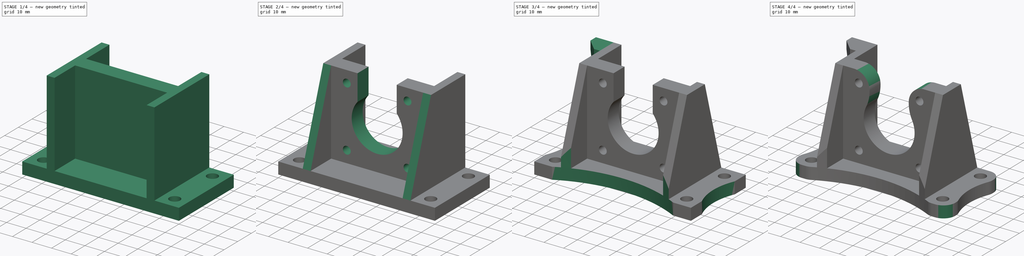
[diagram: build sequence overview — one tinted view per stage of 4, left to right]
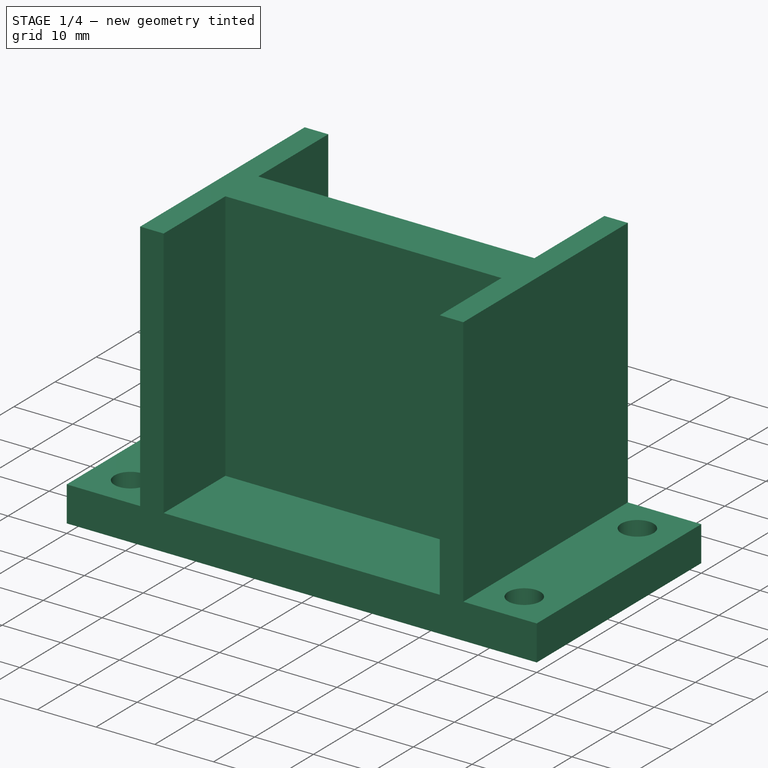
[diagram: stage 1 of 4 — iso view after this stage's code; geometry added in this stage tinted green]
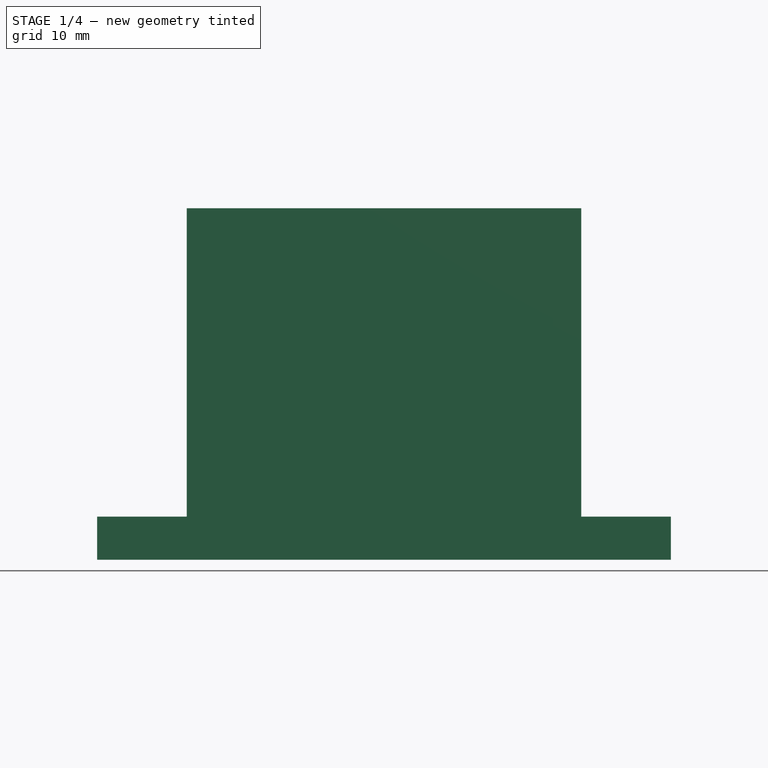
[diagram: stage 1 of 4 — front view after this stage's code; geometry added in this stage tinted green]
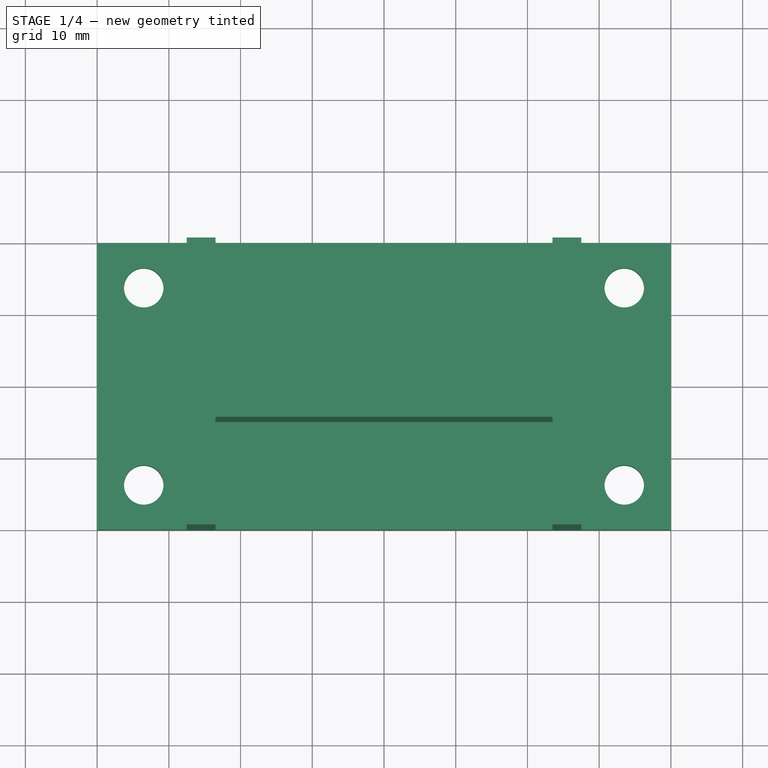
[diagram: stage 1 of 4 — top view after this stage's code; geometry added in this stage tinted green]
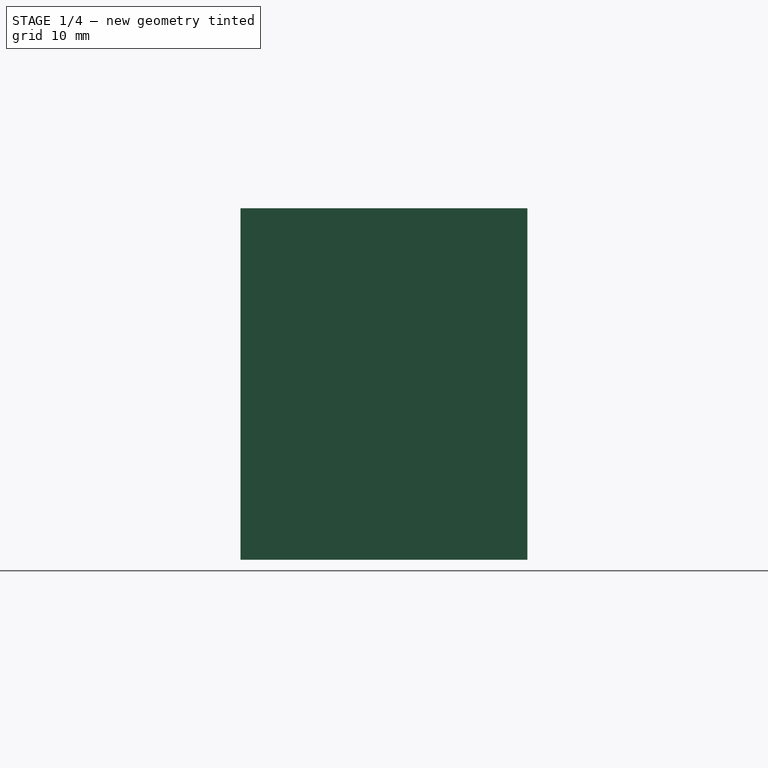
[diagram: stage 1 of 4 — right view after this stage's code; geometry added in this stage tinted green]
FCSTD DOCUMENT  (FreeCAD 0.16R5480 (Git))
Label: y_motor_mount_v3.0_TAZ
License: All rights reserved
LicenseURL: http://en.wikipedia.org/wiki/All_rights_reserved
objects: Sketcher::SketchObject×9, PartDesign::Pocket×6, PartDesign::Pad×3, PartDesign::Fillet×3, PartDesign::Chamfer×1
note: 31 computed .brp shape members not serialized (recipe doc carries the construction recipe); baked Part::Feature solids carry a one-line shape summary decoded from their .brp

FEATURE [Sketcher::SketchObject] Sketch
  sketch-geometry (20):
    g0: LineSegment StartX=0 StartY=0 StartZ=0 EndX=80 EndY=0 EndZ=0
    g1: LineSegment StartX=80 StartY=0 StartZ=0 EndX=80 EndY=40 EndZ=0
    g2: LineSegment StartX=80 StartY=40 StartZ=0 EndX=0 EndY=40 EndZ=0
    g3: LineSegment StartX=0 StartY=40 StartZ=0 EndX=0 EndY=0 EndZ=0
    g4: LineSegment [constr] StartX=6.5 StartY=33.75 StartZ=0 EndX=73.5 EndY=33.75 EndZ=0
    g5: LineSegment [constr] StartX=73.5 StartY=33.75 StartZ=0 EndX=73.5 EndY=6.25 EndZ=0
    g6: LineSegment [constr] StartX=73.5 StartY=6.25 StartZ=0 EndX=6.5 EndY=6.25 EndZ=0
    g7: LineSegment [constr] StartX=6.5 StartY=6.25 StartZ=0 EndX=6.5 EndY=33.75 EndZ=0
    g8: LineSegment [constr] StartX=0 StartY=40 StartZ=0 EndX=6.5 EndY=40 EndZ=0
    g9: LineSegment [constr] StartX=6.5 StartY=40 StartZ=0 EndX=6.5 EndY=33.75 EndZ=0
    g10: LineSegment [constr] StartX=6.5 StartY=33.75 StartZ=0 EndX=0 EndY=33.75 EndZ=0
    g11: LineSegment [constr] StartX=0 StartY=33.75 StartZ=0 EndX=0 EndY=40 EndZ=0
    g12: LineSegment [constr] StartX=80 StartY=0 StartZ=0 EndX=73.5 EndY=0 EndZ=0
    g13: LineSegment [constr] StartX=73.5 StartY=0 StartZ=0 EndX=73.5 EndY=6.25 EndZ=0
    g14: LineSegment [constr] StartX=73.5 StartY=6.25 StartZ=0 EndX=80 EndY=6.25 EndZ=0
    g15: LineSegment [constr] StartX=80 StartY=6.25 StartZ=0 EndX=80 EndY=0 EndZ=0
    g16: Circle CenterX=6.5 CenterY=33.75 CenterZ=0 NormalX=0 NormalY=0 NormalZ=1 Radius=2.75
    g17: Circle CenterX=73.5 CenterY=33.75 CenterZ=0 NormalX=0 NormalY=0 NormalZ=1 Radius=2.75
    g18: Circle CenterX=73.5 CenterY=6.25 CenterZ=0 NormalX=0 NormalY=0 NormalZ=1 Radius=2.75
    g19: Circle CenterX=6.5 CenterY=6.25 CenterZ=0 NormalX=0 NormalY=0 NormalZ=1 Radius=2.75
  constraints (51):
    c: Coincident(g0,g1)
    c: Coincident(g2,g3)
    c: Coincident(g3,g0)
    c: Horizontal(g0)
    c: Horizontal(g2)
    c: Vertical(g1)
    c: Vertical(g3)
    c: Coincident(g0,g-1)
    c: DistanceX(g2) = -80
    c: DistanceY(g3) = -40
    c: Coincident(g5,g6)
    c: Coincident(g6,g7)
    c: Coincident(g7,g4)
    c: Horizontal(g4)
    c: Horizontal(g6)
    c: Vertical(g5)
    c: Vertical(g7)
    c: Coincident(g8,g9)
    c: Coincident(g9,g10)
    c: Coincident(g10,g11)
    c: Coincident(g11,g8)
    c: Horizontal(g8)
    c: Horizontal(g10)
    c: Vertical(g9)
    c: Vertical(g11)
    c: Coincident(g8,g2)
    c: Coincident(g9,g4)
    c: Coincident(g12,g13)
    c: Coincident(g13,g14)
    c: Coincident(g14,g15)
    c: Coincident(g15,g12)
    c: Horizontal(g12)
    c: Horizontal(g14)
    c: Vertical(g13)
    c: Vertical(g15)
    c: Coincident(g12,g0)
    c: Coincident(g13,g5)
    c: Equal(g14,g10)
    c: Equal(g9,g13)
    c: Coincident(g16,g4)
    c: Coincident(g4,g5)
    c: Coincident(g17,g4)
    c: Coincident(g18,g5)
    c: Coincident(g19,g6)
    c: Radius(g16) = 2.75
    c: Equal(g16,g19)
    c: Equal(g16,g17)
    c: Equal(g16,g18)
    c: DistanceX(g6) = -67
    c: DistanceY(g5) = -27.5
    c: Coincident(g2,g1)
FEATURE [PartDesign::Pad] Pad
  Length = 6
  Length2 = 100
  Sketch = -> Sketch
  Type = 0
FEATURE [Sketcher::SketchObject] Sketch001
  ExternalGeometry = -> [Pad]
  Placement = pos=(0,0,6) rot=(0,0,1;0rad)
  Support = -> Pad [Face10]
  sketch-geometry (4):
    g0: LineSegment StartX=12.5 StartY=40 StartZ=0 EndX=67.5 EndY=40 EndZ=0
    g1: LineSegment StartX=67.5 StartY=40 StartZ=0 EndX=67.5 EndY=0 EndZ=0
    g2: LineSegment StartX=67.5 StartY=0 StartZ=0 EndX=12.5 EndY=0 EndZ=0
    g3: LineSegment StartX=12.5 StartY=0 StartZ=0 EndX=12.5 EndY=40 EndZ=0
  constraints (12):
    c: Coincident(g0,g1)
    c: Coincident(g1,g2)
    c: Coincident(g2,g3)
    c: Coincident(g3,g0)
    c: Horizontal(g0)
    c: Horizontal(g2)
    c: Vertical(g1)
    c: Vertical(g3)
    c: PointOnObject(g0,g-3)
    c: PointOnObject(g1,g-1)
    c: DistanceX(g0,g0) = 55
    c: DistanceX(g-3,g0) = 12.5
FEATURE [PartDesign::Pad] Pad001
  Length = 43
  Length2 = 100
  Sketch = -> Sketch001
  Type = 0
FEATURE [Sketcher::SketchObject] Sketch002
  ExternalGeometry = -> [Pad001]
  Placement = pos=(0,0,49) rot=(0,0,1;0rad)
  Support = -> Pad001 [Face16]
  sketch-geometry (8):
    g0: LineSegment StartX=16.5 StartY=40 StartZ=0 EndX=63.5 EndY=40 EndZ=0
    g1: LineSegment StartX=63.5 StartY=40 StartZ=0 EndX=63.5 EndY=23 EndZ=0
    g2: LineSegment StartX=63.5 StartY=23 StartZ=0 EndX=16.5 EndY=23 EndZ=0
    g3: LineSegment StartX=16.5 StartY=23 StartZ=0 EndX=16.5 EndY=40 EndZ=0
    g4: LineSegment StartX=16.5 StartY=0 StartZ=0 EndX=63.5 EndY=0 EndZ=0
    g5: LineSegment StartX=63.5 StartY=0 StartZ=0 EndX=63.5 EndY=15 EndZ=0
    g6: LineSegment StartX=63.5 StartY=15 StartZ=0 EndX=16.5 EndY=15 EndZ=0
    g7: LineSegment StartX=16.5 StartY=15 StartZ=0 EndX=16.5 EndY=0 EndZ=0
  constraints (24):
    c: Coincident(g0,g1)
    c: Coincident(g1,g2)
    c: Coincident(g2,g3)
    c: Coincident(g3,g0)
    c: Horizontal(g0)
    c: Horizontal(g2)
    c: Vertical(g1)
    c: Vertical(g3)
    c: PointOnObject(g0,g-5)
    c: DistanceY(g3) = 17
    c: DistanceX(g-5,g0) = 4
    c: DistanceX(g-5,g0) = -4
    c: Coincident(g4,g5)
    c: Coincident(g5,g6)
    c: Coincident(g6,g7)
    c: Coincident(g7,g4)
    c: Horizontal(g4)
    c: Horizontal(g6)
    c: Vertical(g5)
    c: Vertical(g7)
    c: PointOnObject(g4,g-1)
    c: DistanceY(g5,g1) = 8
    c: PointOnObject(g2,g7)
    c: PointOnObject(g1,g5)
FEATURE [PartDesign::Pocket] Pocket
  Length = 43
  Sketch = -> Sketch002
  Type = 0
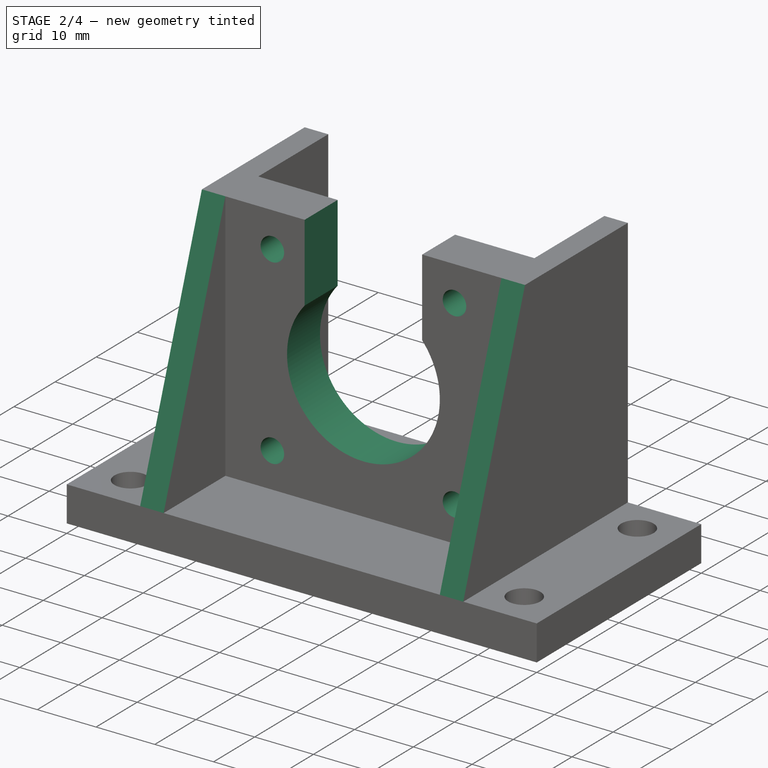
[diagram: stage 2 of 4 — iso view after this stage's code; geometry added in this stage tinted green]
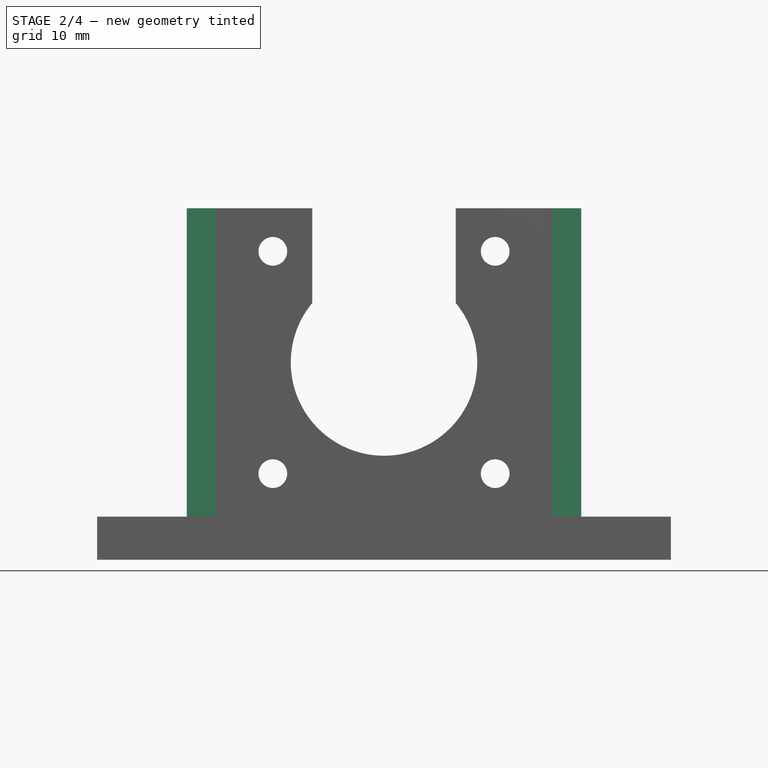
[diagram: stage 2 of 4 — front view after this stage's code; geometry added in this stage tinted green]
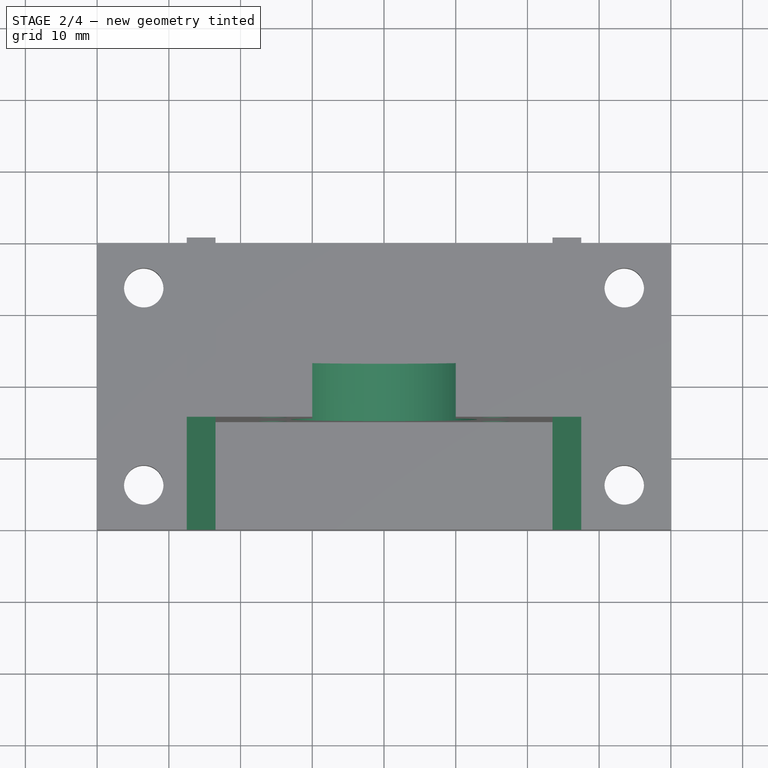
[diagram: stage 2 of 4 — top view after this stage's code; geometry added in this stage tinted green]
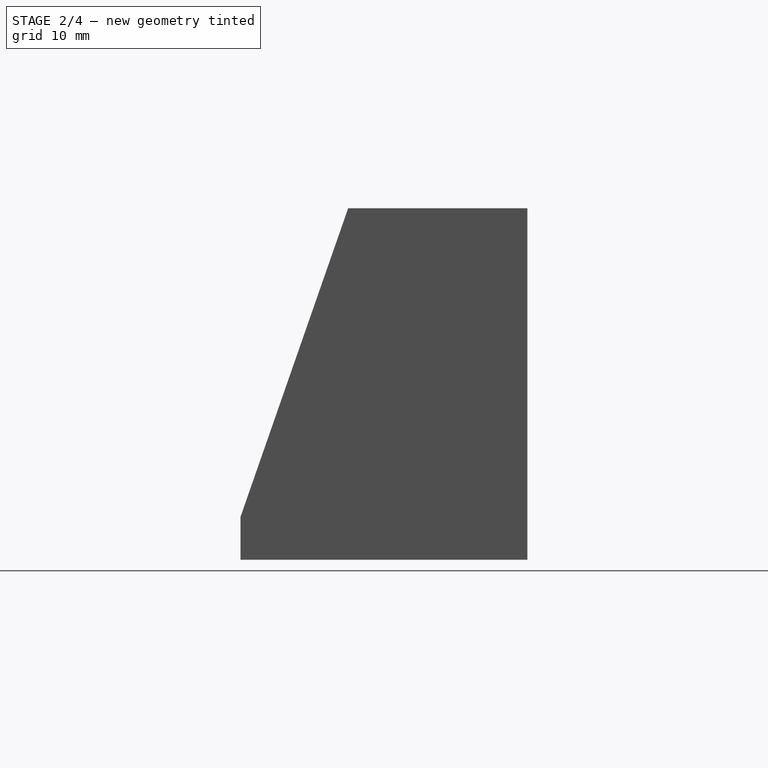
[diagram: stage 2 of 4 — right view after this stage's code; geometry added in this stage tinted green]
FEATURE [Sketcher::SketchObject] Sketch003
  ExternalGeometry = -> [Pocket]
  Placement = pos=(0,15,0) rot=(1,0,0;1.5708rad)
  Support = -> Pocket [Face26]
  sketch-geometry (19):
    g0: LineSegment [constr] StartX=24.5 StartY=43 StartZ=0 EndX=55.5 EndY=43 EndZ=0
    g1: LineSegment [constr] StartX=55.5 StartY=43 StartZ=0 EndX=55.5 EndY=12 EndZ=0
    g2: LineSegment [constr] StartX=55.5 StartY=12 StartZ=0 EndX=24.5 EndY=12 EndZ=0
    g3: LineSegment [constr] StartX=24.5 StartY=12 StartZ=0 EndX=24.5 EndY=43 EndZ=0
    g4: LineSegment [constr] StartX=24.5 StartY=43 StartZ=0 EndX=40 EndY=27.5 EndZ=0
    g5: LineSegment [constr] StartX=40 StartY=27.5 StartZ=0 EndX=55.5 EndY=12 EndZ=0
    g6: Circle CenterX=40 CenterY=27.5 CenterZ=0 NormalX=0 NormalY=0 NormalZ=1 Radius=13
    g7: Circle CenterX=55.5 CenterY=43 CenterZ=0 NormalX=0 NormalY=0 NormalZ=1 Radius=2
    g8: Circle CenterX=55.5 CenterY=12 CenterZ=0 NormalX=0 NormalY=0 NormalZ=1 Radius=2
    g9: Circle CenterX=24.5 CenterY=12 CenterZ=0 NormalX=0 NormalY=0 NormalZ=1 Radius=2
    g10: Circle CenterX=24.5 CenterY=43 CenterZ=0 NormalX=0 NormalY=0 NormalZ=1 Radius=2
    g11: LineSegment [constr] StartX=16.5 StartY=6 StartZ=0 EndX=24.5 EndY=6 EndZ=0
    g12: LineSegment [constr] StartX=24.5 StartY=6 StartZ=0 EndX=24.5 EndY=12 EndZ=0
    g13: LineSegment [constr] StartX=24.5 StartY=12 StartZ=0 EndX=16.5 EndY=12 EndZ=0
    g14: LineSegment [constr] StartX=16.5 StartY=12 StartZ=0 EndX=16.5 EndY=6 EndZ=0
    g15: LineSegment [constr] StartX=55.5 StartY=12 StartZ=0 EndX=63.5 EndY=12 EndZ=0
    g16: LineSegment [constr] StartX=63.5 StartY=12 StartZ=0 EndX=63.5 EndY=6 EndZ=0
    g17: LineSegment [constr] StartX=63.5 StartY=6 StartZ=0 EndX=55.5 EndY=6 EndZ=0
    g18: LineSegment [constr] StartX=55.5 StartY=6 StartZ=0 EndX=55.5 EndY=12 EndZ=0
  constraints (47):
    c: Coincident(g0,g1)
    c: Coincident(g1,g2)
    c: Coincident(g2,g3)
    c: Coincident(g3,g0)
    c: Horizontal(g0)
    c: Horizontal(g2)
    c: Vertical(g1)
    c: Vertical(g3)
    c: Equal(g0,g3)
    c: Coincident(g0,g4)
    c: Coincident(g4,g5)
    c: Coincident(g5,g1)
    c: Equal(g4,g5)
    c: PointOnObject(g1,g4)
    c: DistanceX(g0) = 31
    c: Coincident(g6,g4)
    c: Coincident(g7,g0)
    c: Coincident(g8,g1)
    c: Coincident(g9,g2)
    c: Coincident(g10,g0)
    c: Equal(g10,g9)
    c: Equal(g9,g8)
    c: Equal(g8,g7)
    c: Radius(g7) = 2
    c: Radius(g6) = 13
    c: Coincident(g11,g12)
    c: Coincident(g12,g13)
    c: Coincident(g13,g14)
    c: Coincident(g14,g11)
    c: Horizontal(g11)
    c: Horizontal(g13)
    c: Vertical(g12)
    c: Vertical(g14)
    c: Coincident(g11,g-3)
    c: Coincident(g12,g2)
    c: Coincident(g15,g16)
    c: Coincident(g16,g17)
    c: Coincident(g17,g18)
    c: Coincident(g18,g15)
    c: Horizontal(g15)
    c: Horizontal(g17)
    c: Vertical(g16)
    c: Vertical(g18)
    c: Coincident(g15,g1)
    c: Coincident(g16,g-3)
    c: Equal(g13,g15)
    c: DistanceY(g12) = 6
FEATURE [PartDesign::Pocket] Pocket001
  Length = 5
  Sketch = -> Sketch003
  Type = 1
FEATURE [Sketcher::SketchObject] Sketch004
  ExternalGeometry = -> [Pocket001]
  Placement = pos=(0,15,0) rot=(1,0,0;1.5708rad)
  Support = -> Pocket001 [Face26]
  sketch-geometry (4):
    g0: LineSegment StartX=30 StartY=35.8066 StartZ=0 EndX=50 EndY=35.8066 EndZ=0
    g1: LineSegment StartX=50 StartY=35.8066 StartZ=0 EndX=50 EndY=49 EndZ=0
    g2: LineSegment StartX=50 StartY=49 StartZ=0 EndX=30 EndY=49 EndZ=0
    g3: LineSegment StartX=30 StartY=49 StartZ=0 EndX=30 EndY=35.8066 EndZ=0
  constraints (12):
    c: Coincident(g0,g1)
    c: Coincident(g1,g2)
    c: Coincident(g2,g3)
    c: Coincident(g3,g0)
    c: Horizontal(g0)
    c: Horizontal(g2)
    c: Vertical(g1)
    c: Vertical(g3)
    c: PointOnObject(g0,g-4)
    c: PointOnObject(g1,g-3)
    c: PointOnObject(g0,g-4)
    c: DistanceX(g0) = 20
FEATURE [PartDesign::Pocket] Pocket002
  Length = 5
  Sketch = -> Sketch004
  Type = 1
FEATURE [Sketcher::SketchObject] Sketch005
  ExternalGeometry = -> [Pocket002]
  Placement = pos=(12.5,0,0) rot=(0.57735,-0.57735,-0.57735;2.0944rad)
  Support = -> Pocket002 [Face18]
  sketch-geometry (3):
    g0: LineSegment StartX=0 StartY=6 StartZ=0 EndX=-15 EndY=49 EndZ=0
    g1: LineSegment StartX=-15 StartY=49 StartZ=0 EndX=0 EndY=49 EndZ=0
    g2: LineSegment StartX=0 StartY=49 StartZ=0 EndX=0 EndY=6 EndZ=0
  constraints (7):
    c: Coincident(g-4,g0)
    c: PointOnObject(g0,g-3)
    c: Coincident(g0,g1)
    c: Coincident(g1,g-3)
    c: Coincident(g1,g2)
    c: Coincident(g2,g0)
    c: DistanceX(g0,g1) = 15
FEATURE [PartDesign::Pocket] Pocket003
  Length = 5
  Sketch = -> Sketch005
  Type = 1
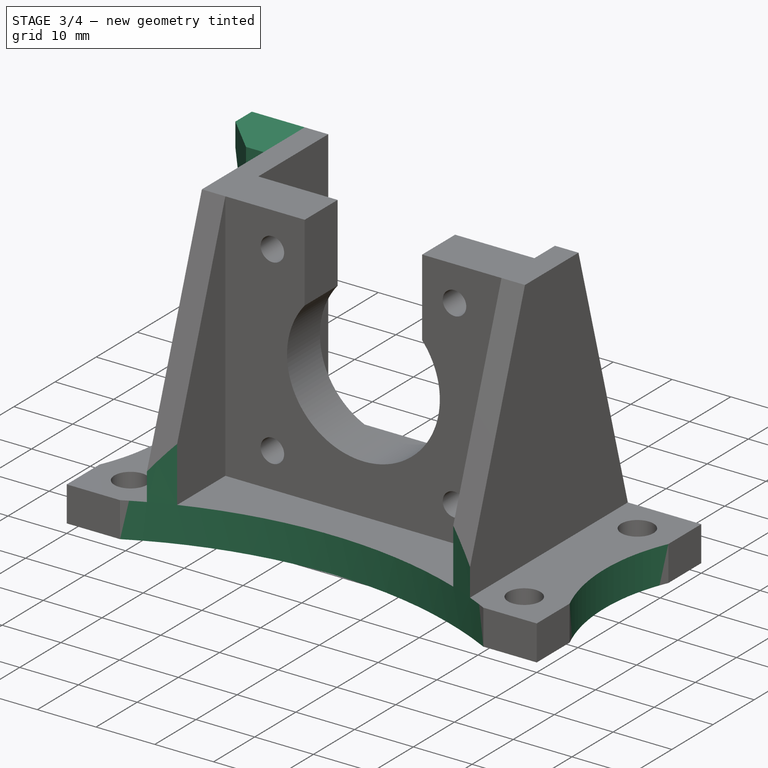
[diagram: stage 3 of 4 — iso view after this stage's code; geometry added in this stage tinted green]
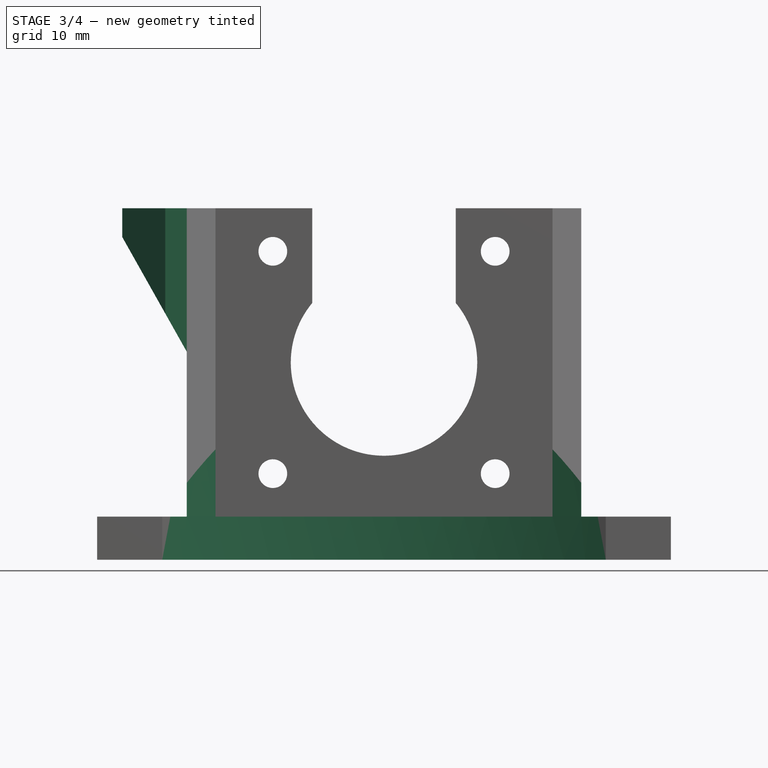
[diagram: stage 3 of 4 — front view after this stage's code; geometry added in this stage tinted green]
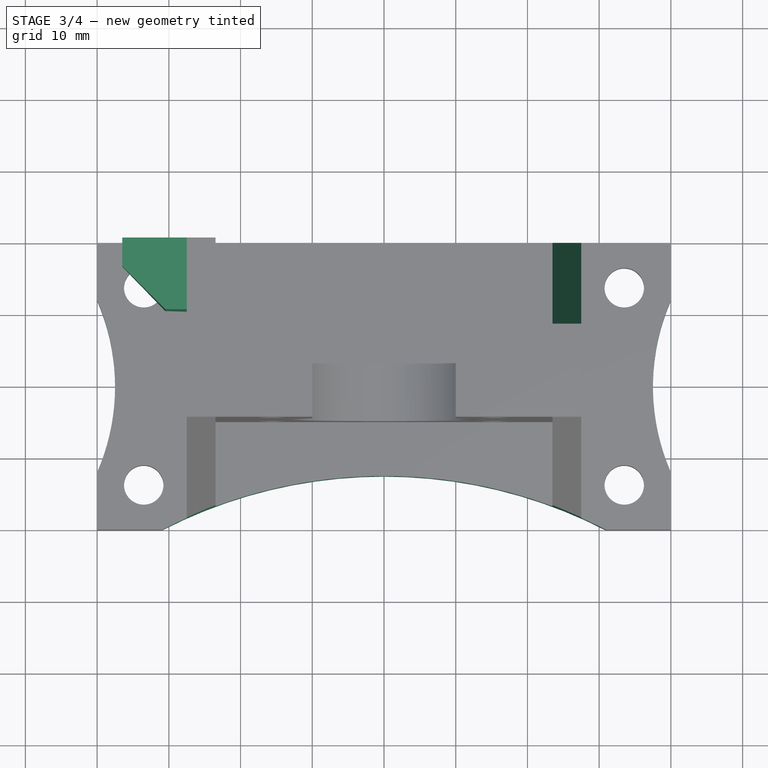
[diagram: stage 3 of 4 — top view after this stage's code; geometry added in this stage tinted green]
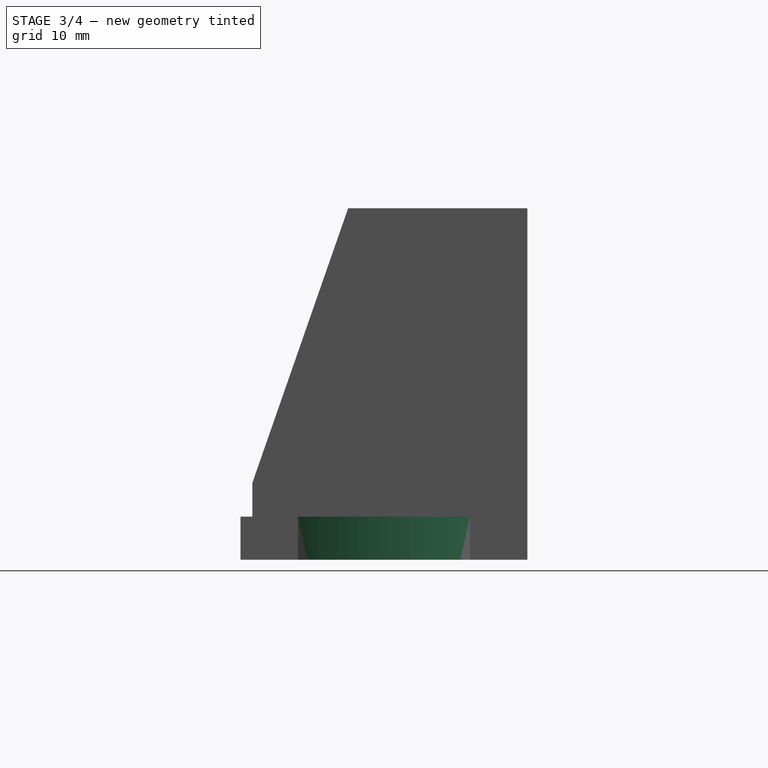
[diagram: stage 3 of 4 — right view after this stage's code; geometry added in this stage tinted green]
FEATURE [Sketcher::SketchObject] Sketch006
  ExternalGeometry = -> [Pocket003]
  Placement = pos=(67.5,0,0) rot=(0.57735,0.57735,0.57735;2.0944rad)
  Support = -> Pocket003 [Face19]
  sketch-geometry (3):
    g0: LineSegment StartX=40 StartY=6 StartZ=0 EndX=28 EndY=49 EndZ=0
    g1: LineSegment StartX=28 StartY=49 StartZ=0 EndX=40 EndY=49 EndZ=0
    g2: LineSegment StartX=40 StartY=49 StartZ=0 EndX=40 EndY=6 EndZ=0
  constraints (4):
    c: Coincident(g0,g1)
    c: Coincident(g1,g2)
    c: Coincident(g2,g0)
    c: DistanceX(g0,g1) = 12
FEATURE [PartDesign::Pocket] Pocket004
  Length = 10
  Sketch = -> Sketch006
  Type = 0
FEATURE [Sketcher::SketchObject] Sketch007
  ExternalGeometry = -> [Pocket004]
  Placement = pos=(0,40,0) rot=(0,0.707107,0.707107;3.14159rad)
  Support = -> Pocket004 [Face10]
  sketch-geometry (4):
    g0: LineSegment StartX=-12.5 StartY=49 StartZ=0 EndX=-3.5 EndY=49 EndZ=0
    g1: LineSegment StartX=-3.5 StartY=49 StartZ=0 EndX=-3.5 EndY=45 EndZ=0
    g2: LineSegment StartX=-3.5 StartY=45 StartZ=0 EndX=-12.5 EndY=29 EndZ=0
    g3: LineSegment StartX=-12.5 StartY=29 StartZ=0 EndX=-12.5 EndY=49 EndZ=0
  constraints (11):
    c: Coincident(g-4,g0)
    c: Horizontal(g0)
    c: Coincident(g0,g1)
    c: Vertical(g1)
    c: Coincident(g1,g2)
    c: PointOnObject(g2,g-4)
    c: Coincident(g2,g3)
    c: Coincident(g3,g0)
    c: DistanceX(g0) = 9
    c: DistanceY(g1) = -4
    c: DistanceY(g2,g0) = 20
FEATURE [PartDesign::Pad] Pad002
  Length = 10
  Length2 = 100
  Reversed = true
  Sketch = -> Sketch007
  Type = 0
FEATURE [Sketcher::SketchObject] Sketch008
  Placement = pos=(0,0,0) rot=(1,0,0;3.14159rad)
  Support = -> Pad002 [Face4]
  sketch-geometry (3):
    g0: Circle CenterX=40 CenterY=60 CenterZ=0 NormalX=0 NormalY=0 NormalZ=1 Radius=67.5
    g1: Circle CenterX=-27.5 CenterY=-20 CenterZ=0 NormalX=0 NormalY=0 NormalZ=1 Radius=30
    g2: Circle CenterX=107.5 CenterY=-20 CenterZ=0 NormalX=0 NormalY=0 NormalZ=1 Radius=30
  constraints (9):
    c: DistanceX(g0) = 40
    c: DistanceY(g0) = 60
    c: Radius(g0) = 67.5
    c: Radius(g1) = 30
    c: DistanceX(g1) = -27.5
    c: DistanceY(g1) = -20
    c: Equal(g1,g2)
    c: DistanceX(g2) = 107.5
    c: DistanceY(g2) = -20
FEATURE [PartDesign::Pocket] Pocket005
  Length = 5
  Sketch = -> Sketch008
  Type = 1
FEATURE [PartDesign::Chamfer] Chamfer
  Base = -> Pocket005 [Edge90]
  Size = 6
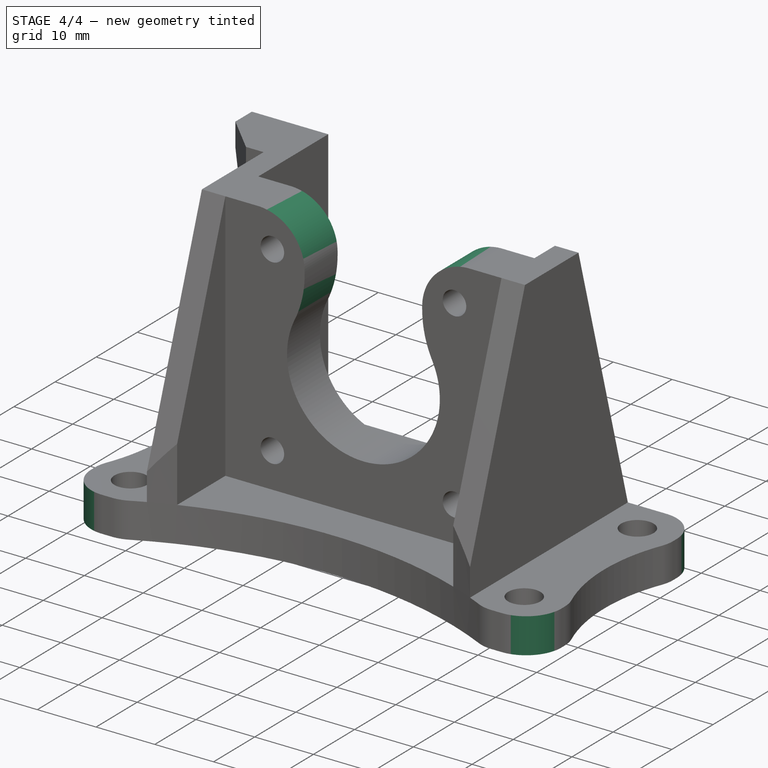
[diagram: stage 4 of 4 — iso view after this stage's code; geometry added in this stage tinted green]
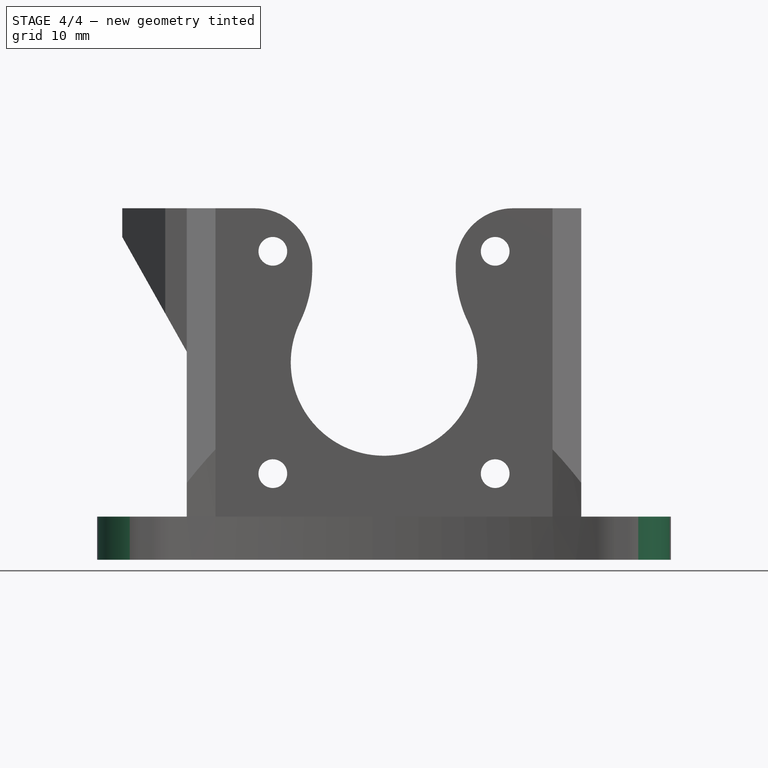
[diagram: stage 4 of 4 — front view after this stage's code; geometry added in this stage tinted green]
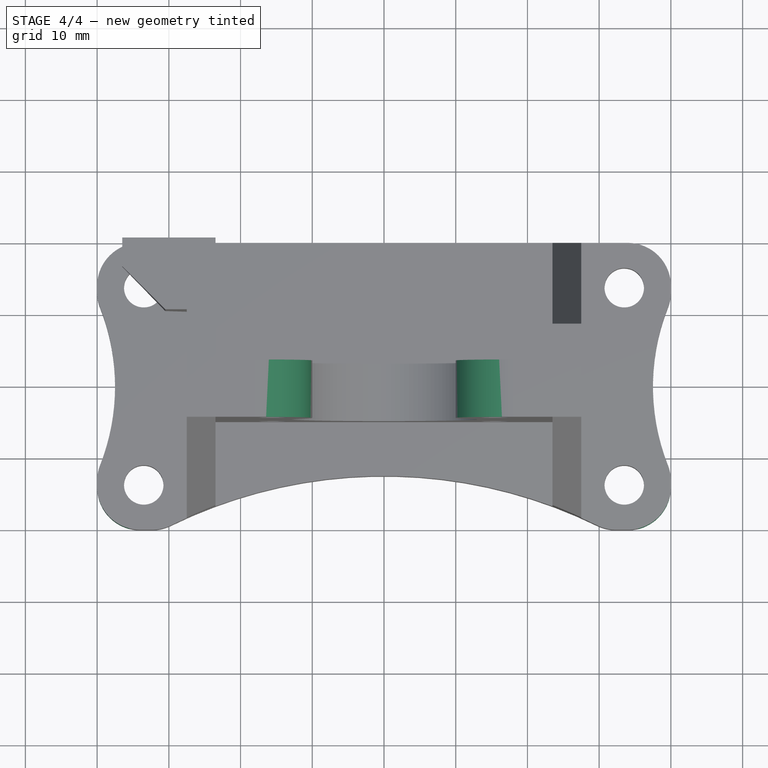
[diagram: stage 4 of 4 — top view after this stage's code; geometry added in this stage tinted green]
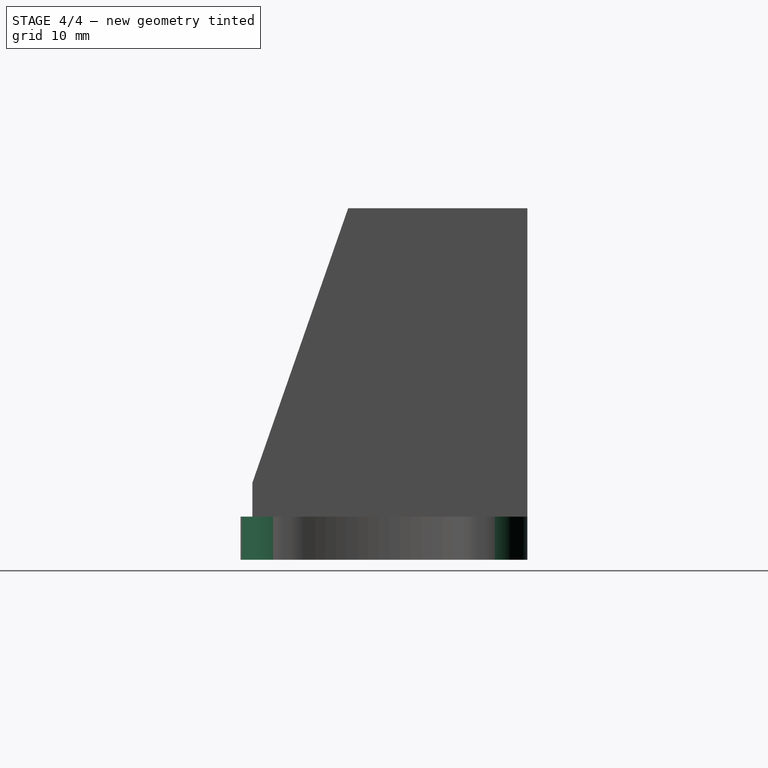
[diagram: stage 4 of 4 — right view after this stage's code; geometry added in this stage tinted green]
FEATURE [PartDesign::Fillet] Fillet
  Base = -> Chamfer [Edge59,Edge65,Edge61,Edge52,Edge48,Edge41,Edge102,Edge128,Edge116,Edge49]
  Radius = 6
FEATURE [PartDesign::Fillet] Fillet001
  Base = -> Fillet [Edge111,Edge128]
  Radius = 8
FEATURE [PartDesign::Fillet] Fillet002
  Base = -> Fillet001 [Edge66,Edge62]
  Radius = 17
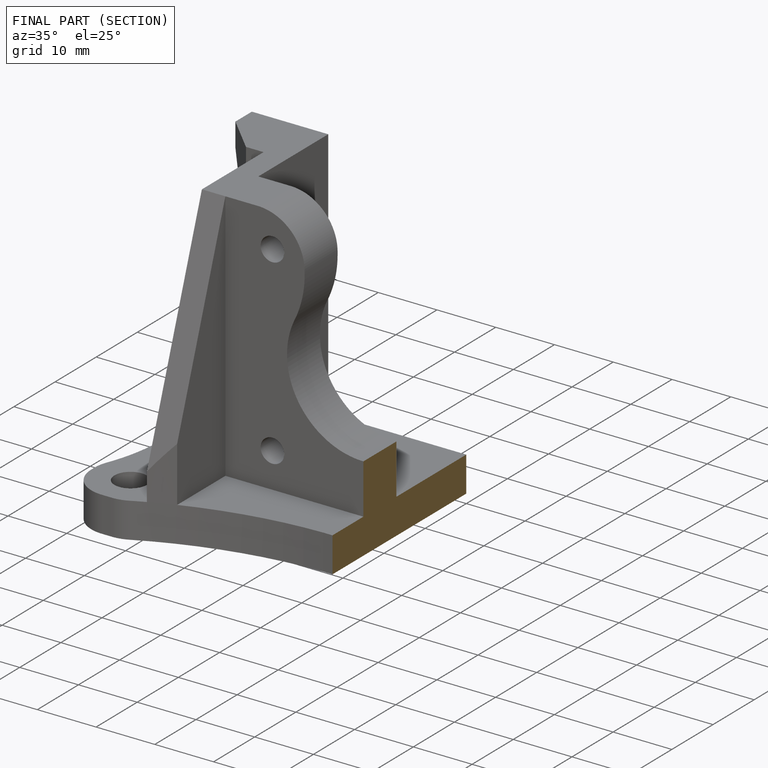
[diagram: finished part — half-section view (interior)]
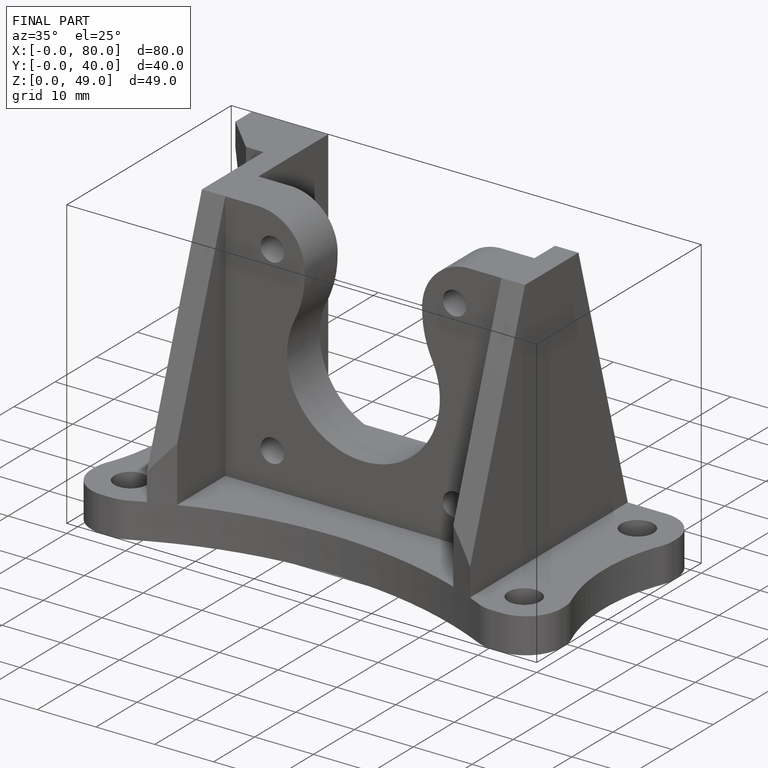
[diagram: finished part — iso view with bounding-box wireframe]
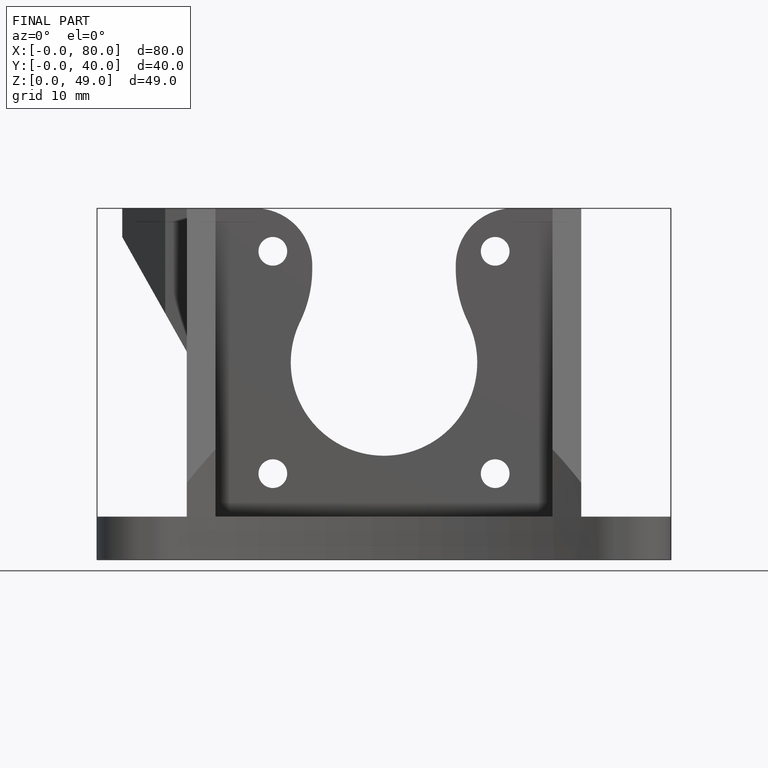
[diagram: finished part — front view with bounding-box wireframe]
